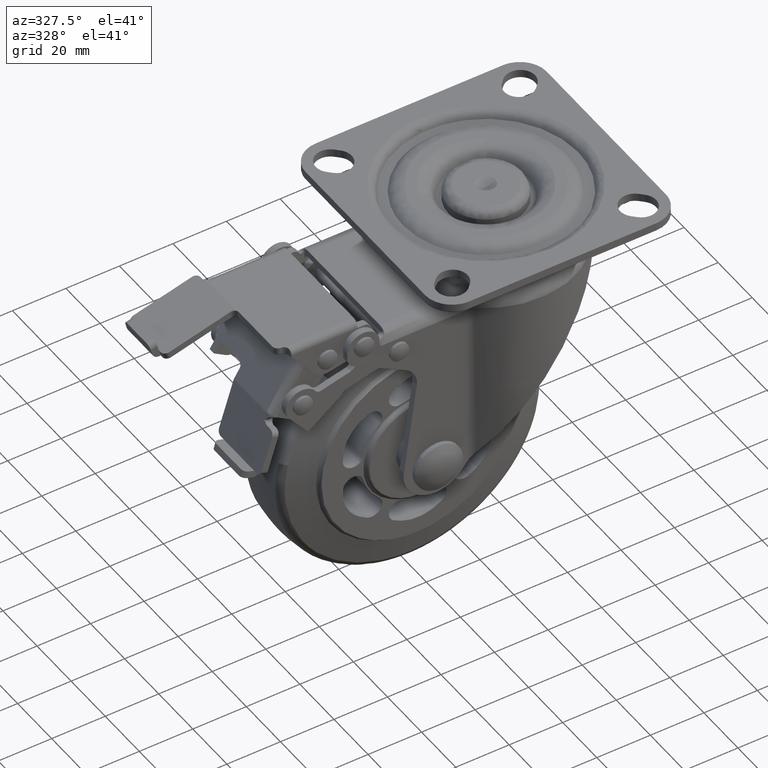
[diagram: clean part render]
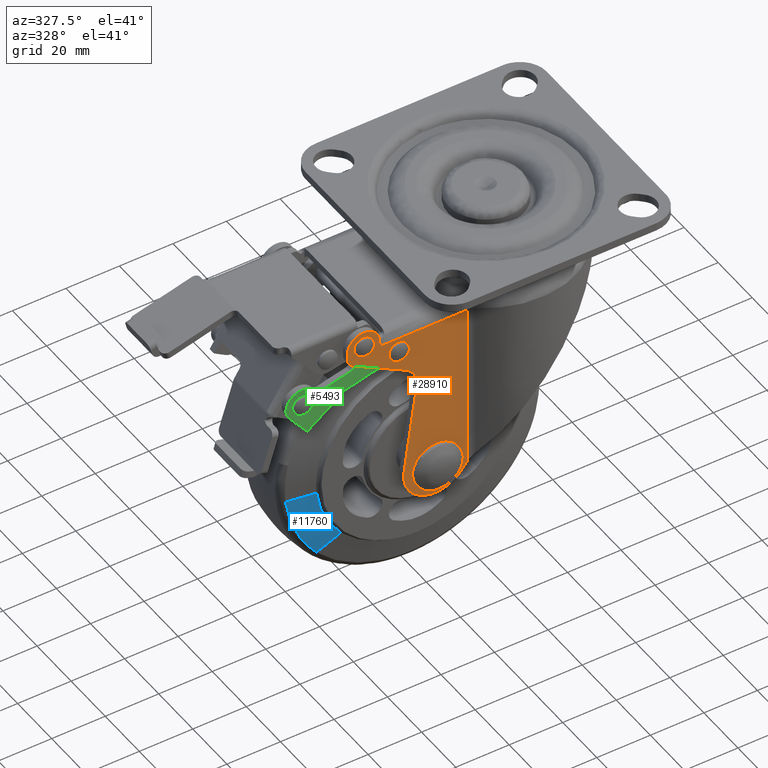
[diagram: same view with three faces highlighted in distinct colors, each labeled with its STEP entity id]
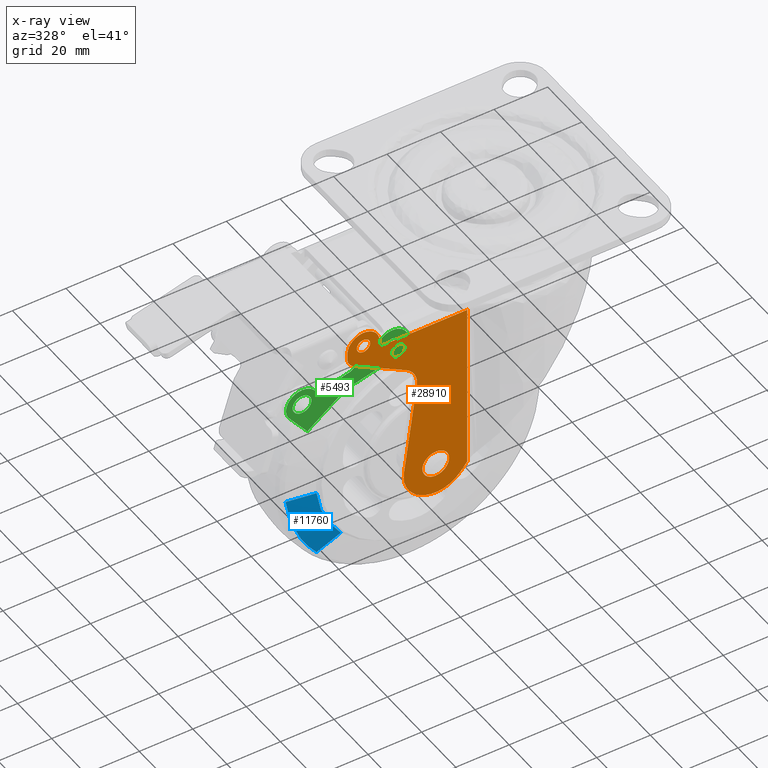
[diagram: x-ray of the same camera — body ghosted, the three highlighted faces saturated]
A machine part, auxiliary view with three faces highlighted in distinct colors.
The next image is the same camera in x-ray (body ghosted, the three faces saturated) — at least one of them is partly hidden behind the body in this view.
Their STEP definitions:

[orange] entity #28910 — the highlighted face is a freeform B-spline surface patch.
#21618=CARTESIAN_POINT('',(-3.566251753555961,-25.500000000000000,3.504545959670637));
#21619=VERTEX_POINT('',#21618);
#21625=CARTESIAN_POINT('',(-4.999999999999414,-25.500000000000000,-0.000002419094364));
#21626=VERTEX_POINT('',#21625);
#21627=CARTESIAN_POINT('',(-3.566251753555961,-25.500000000000000,3.504545959670637));
#21628=CARTESIAN_POINT('',(-3.991988132670250,-25.500000000000011,3.072064571483447));
#21629=CARTESIAN_POINT('',(-4.498081833211098,-25.500000000000011,2.322246550823603));
#21630=CARTESIAN_POINT('',(-4.916048472326435,-25.500000000000011,1.092136724434963));
#21631=CARTESIAN_POINT('',(-5.000097046721995,-25.499999999999989,0.404525921778818));
#21632=CARTESIAN_POINT('',(-4.999999999999414,-25.500000000000000,-0.000002419094364));
#21633=B_SPLINE_CURVE_WITH_KNOTS('',3,(#21627,#21628,#21629,#21630,#21631,#21632),.UNSPECIFIED.,.F.,.U.,(4,1,1,4),(0.000000047918333,1.820345191078629,2.669819100601112,3.883383684889002),.UNSPECIFIED.);
#21634=EDGE_CURVE('',#21619,#21626,#21633,.T.);
#21636=CARTESIAN_POINT('',(0.0,-25.500000000000000,-5.0));
#21637=VERTEX_POINT('',#21636);
#21638=CARTESIAN_POINT('',(-4.999999999999414,-25.500000000000000,-0.000002419094364));
#21639=CARTESIAN_POINT('',(-5.000157573746282,-25.500000000000011,-0.470431339491457));
#21640=CARTESIAN_POINT('',(-4.866278639997378,-25.500000000000028,-1.411220314885082));
#21641=CARTESIAN_POINT('',(-4.357098976019345,-25.500000000000000,-2.541206644646180));
#21642=CARTESIAN_POINT('',(-3.623630551286645,-25.499999999999961,-3.505138546369112));
#21643=CARTESIAN_POINT('',(-2.786654680242112,-25.499999999999879,-4.209421629424933));
#21644=CARTESIAN_POINT('',(-1.533669466304156,-25.500000000000082,-4.830464606631264));
#21645=CARTESIAN_POINT('',(-0.593228641195120,-25.499999999999790,-5.000511721325936));
#21646=CARTESIAN_POINT('',(0.0,-25.500000000000000,-5.0));
#21647=B_SPLINE_CURVE_WITH_KNOTS('',3,(#21638,#21639,#21640,#21641,#21642,#21643,#21644,#21645,#21646),.UNSPECIFIED.,.F.,.U.,(4,1,1,1,1,1,4),(0.000000212725990,1.411261675515068,2.822570997581190,3.681599647907114,5.031459413666931,6.074601990079772,7.854029550946113),.UNSPECIFIED.);
#21648=EDGE_CURVE('',#21626,#21637,#21647,.T.);
#21650=CARTESIAN_POINT('',(4.999999999999415,-25.500000000000000,0.000002419094348));
#21651=VERTEX_POINT('',#21650);
#21652=CARTESIAN_POINT('',(0.0,-25.500000000000000,-5.0));
#21653=CARTESIAN_POINT('',(0.368147878586699,-25.500000000000011,-5.000059477020746));
#21654=CARTESIAN_POINT('',(1.124908020499823,-25.499999999999979,-4.916078329069499));
#21655=CARTESIAN_POINT('',(2.018712517722065,-25.500000000000060,-4.602440892424577));
#21656=CARTESIAN_POINT('',(2.859312569878072,-25.499999999999869,-4.133048550618746));
#21657=CARTESIAN_POINT('',(3.515198570299598,-25.500000000000160,-3.601465760309441));
#21658=CARTESIAN_POINT('',(4.183986759379686,-25.500000000000021,-2.796634823733326));
#21659=CARTESIAN_POINT('',(4.802728206962187,-25.500000000000000,-1.656318927190959));
#21660=CARTESIAN_POINT('',(5.000651760896218,-25.500000000000039,-0.634149556366890));
#21661=CARTESIAN_POINT('',(4.999999999999415,-25.500000000000000,0.000002419094348));
#21662=B_SPLINE_CURVE_WITH_KNOTS('',3,(#21652,#21653,#21654,#21655,#21656,#21657,#21658,#21659,#21660,#21661),.UNSPECIFIED.,.F.,.U.,(4,1,1,1,1,1,1,4),(0.000000211885030,1.104447558449851,2.270307549778374,2.822571976929380,3.988310895941552,4.786017932891787,5.951884053035013,7.854032277846362),.UNSPECIFIED.);
#21663=EDGE_CURVE('',#21637,#21651,#21662,.T.);
#21665=CARTESIAN_POINT('',(3.504546805683333,-25.500000000000000,3.566252617747261));
#21666=VERTEX_POINT('',#21665);
#21667=CARTESIAN_POINT('',(4.999999999999415,-25.500000000000000,0.000002419094348));
#21668=CARTESIAN_POINT('',(5.000307658898555,-25.499999999999972,0.537721314100168));
#21669=CARTESIAN_POINT('',(4.841670081812332,-25.499999999999972,1.509533516539295));
#21670=CARTESIAN_POINT('',(4.257544146110182,-25.500000000000071,2.709721998991208));
#21671=CARTESIAN_POINT('',(3.755323000593012,-25.499999999999940,3.319864033228976));
#21672=CARTESIAN_POINT('',(3.504546805683333,-25.500000000000000,3.566252617747261));
#21673=B_SPLINE_CURVE_WITH_KNOTS('',3,(#21667,#21668,#21669,#21670,#21671,#21672),.UNSPECIFIED.,.F.,.U.,(4,1,1,4),(0.000000053522392,1.613088472586899,2.915943694694223,3.970647255260560),.UNSPECIFIED.);
#21674=EDGE_CURVE('',#21651,#21666,#21673,.T.);
#21760=CARTESIAN_POINT('',(0.0,-25.500000000000000,5.0));
#21761=VERTEX_POINT('',#21760);
#21762=CARTESIAN_POINT('',(3.504546805683333,-25.500000000000000,3.566252617747261));
#21763=CARTESIAN_POINT('',(3.259336300919578,-25.500000000000000,3.807292206920355));
#21764=CARTESIAN_POINT('',(2.734805078306951,-25.500000000000039,4.225713917241245));
#21765=CARTESIAN_POINT('',(1.577275230169902,-25.500000000000000,4.818828211919051));
#21766=CARTESIAN_POINT('',(0.627101140365250,-25.499999999999961,5.000525821532926));
#21767=CARTESIAN_POINT('',(0.0,-25.500000000000000,5.0));
#21768=B_SPLINE_CURVE_WITH_KNOTS('',3,(#21762,#21763,#21764,#21765,#21766,#21767),.UNSPECIFIED.,.F.,.U.,(4,1,1,4),(0.000000047903363,1.031525170700833,2.002339406052029,3.883381733091217),.UNSPECIFIED.);
#21769=EDGE_CURVE('',#21666,#21761,#21768,.T.);
#21771=CARTESIAN_POINT('',(0.0,-25.500000000000000,5.0));
#21772=CARTESIAN_POINT('',(-0.310202747582723,-25.499999999999989,5.000019603402691));
#21773=CARTESIAN_POINT('',(-0.992634910889171,-25.500000000000011,4.936317089850907));
#21774=CARTESIAN_POINT('',(-2.265930119526627,-25.499999999999989,4.545715244398017));
#21775=CARTESIAN_POINT('',(-3.117286525449961,-25.499999999999989,3.962352133745384));
#21776=CARTESIAN_POINT('',(-3.566251753555961,-25.500000000000000,3.504545959670637));
#21777=B_SPLINE_CURVE_WITH_KNOTS('',3,(#21771,#21772,#21773,#21774,#21775,#21776),.UNSPECIFIED.,.F.,.U.,(4,1,1,4),(0.000000053506600,0.930620547714524,2.047334579588369,3.970649191905151),.UNSPECIFIED.);
#21778=EDGE_CURVE('',#21761,#21619,#21777,.T.);
#22689=CARTESIAN_POINT('',(-28.783125339356051,-25.500000000000000,63.452284747588287));
#22690=VERTEX_POINT('',#22689);
#22696=CARTESIAN_POINT('',(-29.499999999997289,-25.500000000000000,61.700008605720349));
#22697=VERTEX_POINT('',#22696);
#22698=CARTESIAN_POINT('',(-28.783125339356051,-25.500000000000000,63.452284747588287));
#22699=CARTESIAN_POINT('',(-29.053098741330171,-25.500000000000011,63.178585795448782));
#22700=CARTESIAN_POINT('',(-29.396989698715512,-25.499999999999911,62.610149437670422));
#22701=CARTESIAN_POINT('',(-29.500119600055811,-25.500000000000050,61.962950499818817));
#22702=CARTESIAN_POINT('',(-29.499999999997289,-25.500000000000000,61.700008605720349));
#22703=B_SPLINE_CURVE_WITH_KNOTS('',3,(#22698,#22699,#22700,#22701,#22702),.UNSPECIFIED.,.F.,.U.,(4,1,4),(0.000000079756805,1.152887505579512,1.941729759913836),.UNSPECIFIED.);
#22704=EDGE_CURVE('',#22690,#22697,#22703,.T.);
#22706=CARTESIAN_POINT('',(-26.999999999999599,-25.500000000000000,59.200011999999987));
#22707=VERTEX_POINT('',#22706);
#22708=CARTESIAN_POINT('',(-29.499999999997289,-25.500000000000000,61.700008605720349));
#22709=CARTESIAN_POINT('',(-29.500276822347821,-25.500000000000000,61.393174452724672));
#22710=CARTESIAN_POINT('',(-29.400819769691179,-25.500000000000050,60.861580326682393));
#22711=CARTESIAN_POINT('',(-29.052458843491578,-25.499999999999929,60.228737864881573));
#22712=CARTESIAN_POINT('',(-28.604272044722979,-25.500000000000021,59.746267277461122));
#22713=CARTESIAN_POINT('',(-27.940569620165299,-25.500000000000082,59.325830682658342));
#22714=CARTESIAN_POINT('',(-27.347770577209481,-25.499999999999940,59.199561510218871));
#22715=CARTESIAN_POINT('',(-26.999999999999599,-25.500000000000000,59.200011999999987));
#22716=B_SPLINE_CURVE_WITH_KNOTS('',3,(#22708,#22709,#22710,#22711,#22712,#22713,#22714,#22715),.UNSPECIFIED.,.F.,.U.,(4,1,1,1,1,4),(0.000000309606965,0.920412019443474,1.595418182146082,2.147582907781859,2.883952340975204,3.927087447743025),.UNSPECIFIED.);
#22717=EDGE_CURVE('',#22697,#22707,#22716,.T.);
#22719=CARTESIAN_POINT('',(-24.500000000001901,-25.500000000000000,61.700015394279653));
#22720=VERTEX_POINT('',#22719);
#22721=CARTESIAN_POINT('',(-26.999999999999599,-25.500000000000000,59.200011999999987));
#22722=CARTESIAN_POINT('',(-26.693171147160669,-25.500000000000082,59.199743714555211));
#22723=CARTESIAN_POINT('',(-26.100180772822149,-25.499999999999918,59.310596173646012));
#22724=CARTESIAN_POINT('',(-25.423700282661311,-25.500000000000011,59.716016511524032));
#22725=CARTESIAN_POINT('',(-24.905430525455749,-25.500000000000039,60.273939012912699));
#22726=CARTESIAN_POINT('',(-24.578810311627599,-25.499999999999989,60.922769679425741));
#22727=CARTESIAN_POINT('',(-24.499938197860711,-25.500000000000000,61.454584642977473));
#22728=CARTESIAN_POINT('',(-24.500000000001901,-25.500000000000000,61.700015394279653));
#22729=B_SPLINE_CURVE_WITH_KNOTS('',3,(#22721,#22722,#22723,#22724,#22725,#22726,#22727,#22728),.UNSPECIFIED.,.F.,.U.,(4,1,1,1,1,4),(0.000000304965669,0.920412912718637,1.779508350278364,2.331669449207475,3.190764104411265,3.927091273982738),.UNSPECIFIED.);
#22730=EDGE_CURVE('',#22707,#22720,#22729,.T.);
#22732=CARTESIAN_POINT('',(-25.247726070787088,-25.500000000000000,63.483138557259707));
#22733=VERTEX_POINT('',#22732);
#22734=CARTESIAN_POINT('',(-24.500000000001901,-25.500000000000000,61.700015394279653));
#22735=CARTESIAN_POINT('',(-24.499745911550040,-25.500000000000011,62.010263987321927));
#22736=CARTESIAN_POINT('',(-24.624823118211442,-25.499999999999961,62.671795170410689));
#22737=CARTESIAN_POINT('',(-24.996587937723341,-25.500000000000028,63.237019542654771));
#22738=CARTESIAN_POINT('',(-25.247726070787088,-25.500000000000000,63.483138557259707));
#22739=B_SPLINE_CURVE_WITH_KNOTS('',3,(#22734,#22735,#22736,#22737,#22738),.UNSPECIFIED.,.F.,.U.,(4,1,4),(0.000000089076966,0.930660027124239,1.985359654721983),.UNSPECIFIED.);
#22740=EDGE_CURVE('',#22720,#22733,#22739,.T.);
#22822=CARTESIAN_POINT('',(-26.999999999999599,-25.500000000000000,64.200012000000001));
#22823=VERTEX_POINT('',#22822);
#22824=CARTESIAN_POINT('',(-25.247726070787088,-25.500000000000000,63.483138557259707));
#22825=CARTESIAN_POINT('',(-25.435186683282609,-25.499999999999972,63.667524003592042));
#22826=CARTESIAN_POINT('',(-25.969085462583749,-25.500000000000039,64.047584794496373));
#22827=CARTESIAN_POINT('',(-26.615555766769710,-25.499999999999989,64.200737861217178));
#22828=CARTESIAN_POINT('',(-26.999999999999599,-25.500000000000000,64.200012000000001));
#22829=B_SPLINE_CURVE_WITH_KNOTS('',3,(#22824,#22825,#22826,#22827,#22828),.UNSPECIFIED.,.F.,.U.,(4,1,4),(0.000000079680338,0.788841218248369,1.941727013514273),.UNSPECIFIED.);
#22830=EDGE_CURVE('',#22733,#22823,#22829,.T.);
#22832=CARTESIAN_POINT('',(-26.999999999999599,-25.500000000000000,64.200012000000001));
#22833=CARTESIAN_POINT('',(-27.206809747072981,-25.499999999999979,64.200060963018245));
#22834=CARTESIAN_POINT('',(-27.599705148125508,-25.500000000000028,64.150976929463468));
#22835=CARTESIAN_POINT('',(-28.222982092323630,-25.500000000000011,63.916521501591930));
#22836=CARTESIAN_POINT('',(-28.594787795292621,-25.499999999999989,63.644174268965962));
#22837=CARTESIAN_POINT('',(-28.783125339356051,-25.500000000000000,63.452284747588287));
#22838=B_SPLINE_CURVE_WITH_KNOTS('',3,(#22832,#22833,#22834,#22835,#22836,#22837),.UNSPECIFIED.,.F.,.U.,(4,1,1,4),(0.000000088994248,0.620434388624499,1.178793347693942,1.985362364631715),.UNSPECIFIED.);
#22839=EDGE_CURVE('',#22823,#22690,#22838,.T.);
#23073=CARTESIAN_POINT('',(-15.783125339356060,-25.500000000000000,55.452284747588287));
#23074=VERTEX_POINT('',#23073);
#23080=CARTESIAN_POINT('',(-16.499999999997300,-25.500000000000000,53.700008605720363));
#23081=VERTEX_POINT('',#23080);
#23082=CARTESIAN_POINT('',(-15.783125339356060,-25.500000000000000,55.452284747588287));
#23083=CARTESIAN_POINT('',(-16.024481501921709,-25.500000000000028,55.207307346296830));
#23084=CARTESIAN_POINT('',(-16.380670681908018,-25.499999999999989,54.650451539456689));
#23085=CARTESIAN_POINT('',(-16.500233352723310,-25.500000000000021,54.003435253687897));
#23086=CARTESIAN_POINT('',(-16.499999999997300,-25.500000000000000,53.700008605720363));
#23087=B_SPLINE_CURVE_WITH_KNOTS('',3,(#23082,#23083,#23084,#23085,#23086),.UNSPECIFIED.,.F.,.U.,(4,1,4),(0.000000079758824,1.031522776259140,1.941729759913830),.UNSPECIFIED.);
#23088=EDGE_CURVE('',#23074,#23081,#23087,.T.);
#23090=CARTESIAN_POINT('',(-13.999999999999600,-25.500000000000000,51.200011999999987));
#23091=VERTEX_POINT('',#23090);
#23092=CARTESIAN_POINT('',(-16.499999999997300,-25.500000000000000,53.700008605720363));
#23093=CARTESIAN_POINT('',(-16.500289564082941,-25.500000000000000,53.393157384014813));
#23094=CARTESIAN_POINT('',(-16.412253249257169,-25.500000000000039,52.922965287050999));
#23095=CARTESIAN_POINT('',(-16.107272564165591,-25.499999999999961,52.317187865133143));
#23096=CARTESIAN_POINT('',(-15.689039376082560,-25.499999999999989,51.807313370334363));
#23097=CARTESIAN_POINT('',(-14.981533268936669,-25.500000000000121,51.334420065619959));
#23098=CARTESIAN_POINT('',(-14.347740470858730,-25.499999999999869,51.199605828224172));
#23099=CARTESIAN_POINT('',(-13.999999999999600,-25.500000000000000,51.200011999999987));
#23100=B_SPLINE_CURVE_WITH_KNOTS('',3,(#23092,#23093,#23094,#23095,#23096,#23097,#23098,#23099),.UNSPECIFIED.,.F.,.U.,(4,1,1,1,1,4),(0.000000309608747,0.920412019444965,1.411308643455564,2.024861289260824,2.883952340975784,3.927087447742943),.UNSPECIFIED.);
#23101=EDGE_CURVE('',#23081,#23091,#23100,.T.);
#23103=CARTESIAN_POINT('',(-11.500000000001901,-25.500000000000000,53.700015394279639));
#23104=VERTEX_POINT('',#23103);
#23105=CARTESIAN_POINT('',(-13.999999999999600,-25.500000000000000,51.200011999999987));
#23106=CARTESIAN_POINT('',(-13.693154202308980,-25.500000000000050,51.199721758673192));
#23107=CARTESIAN_POINT('',(-13.222947830256500,-25.499999999999929,51.287758328518230));
#23108=CARTESIAN_POINT('',(-12.653906133363140,-25.500000000000028,51.574305153881333));
#23109=CARTESIAN_POINT('',(-12.151412270172820,-25.500000000000039,51.966088272273822));
#23110=CARTESIAN_POINT('',(-11.651875751036050,-25.499999999999861,52.657266279073852));
#23111=CARTESIAN_POINT('',(-11.499440169647331,-25.500000000000089,53.331786415590322));
#23112=CARTESIAN_POINT('',(-11.500000000001901,-25.500000000000000,53.700015394279639));
#23113=B_SPLINE_CURVE_WITH_KNOTS('',3,(#23105,#23106,#23107,#23108,#23109,#23110,#23111,#23112),.UNSPECIFIED.,.F.,.U.,(4,1,1,1,1,4),(0.000000304966659,0.920412912719008,1.411310012929337,1.902225803789732,2.822588348106729,3.927091273982746),.UNSPECIFIED.);
#23114=EDGE_CURVE('',#23091,#23104,#23113,.T.);
#23116=CARTESIAN_POINT('',(-12.247726070787090,-25.500000000000000,55.483138557259707));
#23117=VERTEX_POINT('',#23116);
#23118=CARTESIAN_POINT('',(-11.500000000001901,-25.500000000000000,53.700015394279639));
#23119=CARTESIAN_POINT('',(-11.499768996803200,-25.500000000000000,54.010261011751908));
#23120=CARTESIAN_POINT('',(-11.624786798475339,-25.499999999999979,54.671800413180982));
#23121=CARTESIAN_POINT('',(-11.996604518500421,-25.500000000000039,55.237016820603827));
#23122=CARTESIAN_POINT('',(-12.247726070787090,-25.500000000000000,55.483138557259707));
#23123=B_SPLINE_CURVE_WITH_KNOTS('',3,(#23118,#23119,#23120,#23121,#23122),.UNSPECIFIED.,.F.,.U.,(4,1,4),(0.000000089076184,0.930660027123788,1.985359654721992),.UNSPECIFIED.);
#23124=EDGE_CURVE('',#23104,#23117,#23123,.T.);
#23203=CARTESIAN_POINT('',(-13.999999999999600,-25.500000000000000,56.200012000000001));
#23204=VERTEX_POINT('',#23203);
#23205=CARTESIAN_POINT('',(-12.247726070787090,-25.500000000000000,55.483138557259707));
#23206=CARTESIAN_POINT('',(-12.435191188927590,-25.500000000000021,55.667545131222887));
#23207=CARTESIAN_POINT('',(-12.768891463247940,-25.500000000000000,55.904952835455958));
#23208=CARTESIAN_POINT('',(-13.373061863715280,-25.499999999999989,56.143578113175508));
#23209=CARTESIAN_POINT('',(-13.757275309205379,-25.500000000000089,56.200122415880450));
#23210=CARTESIAN_POINT('',(-13.999999999999600,-25.500000000000000,56.200012000000001));
#23211=B_SPLINE_CURVE_WITH_KNOTS('',3,(#23205,#23206,#23207,#23208,#23209,#23210),.UNSPECIFIED.,.F.,.U.,(4,1,1,4),(0.000000079680755,0.788841218248620,1.213578964815231,1.941727013514257),.UNSPECIFIED.);
#23212=EDGE_CURVE('',#23117,#23204,#23211,.T.);
#23214=CARTESIAN_POINT('',(-13.999999999999600,-25.500000000000000,56.200012000000001));
#23215=CARTESIAN_POINT('',(-14.310243603148150,-25.499999999999918,56.200278554728818));
#23216=CARTESIAN_POINT('',(-14.971819383812781,-25.500000000000220,56.075225976199690));
#23217=CARTESIAN_POINT('',(-15.536969068838880,-25.499999999999851,55.703377224209071));
#23218=CARTESIAN_POINT('',(-15.783125339356060,-25.500000000000000,55.452284747588287));
#23219=B_SPLINE_CURVE_WITH_KNOTS('',3,(#23214,#23215,#23216,#23217,#23218),.UNSPECIFIED.,.F.,.U.,(4,1,4),(0.000000088994169,0.930661297514774,1.985362364631715),.UNSPECIFIED.);
#23220=EDGE_CURVE('',#23204,#23074,#23219,.T.);
#25472=CARTESIAN_POINT('',(11.775535386729960,-25.500000000000000,58.699997000000003));
#25473=VERTEX_POINT('',#25472);
#25558=CARTESIAN_POINT('',(11.775535386730001,-25.500000000000000,-4.615695695761920));
#25559=VERTEX_POINT('',#25558);
#25579=CARTESIAN_POINT('',(11.775535386730001,-25.500000000000000,-4.615695695761920));
#25580=CARTESIAN_POINT('',(11.775535386729960,-25.500000000000000,58.699997000000003));
#25581=QUASI_UNIFORM_CURVE('',1,(#25579,#25580),.UNSPECIFIED.,.F.,.U.);
#25582=EDGE_CURVE('',#25559,#25473,#25581,.T.);
#27129=CARTESIAN_POINT('',(-20.999999999999599,-25.500000000000000,61.936346323290500));
#27130=VERTEX_POINT('',#27129);
#27131=CARTESIAN_POINT('',(-21.037882749999600,-25.500000000000000,62.127258992467901));
#27132=VERTEX_POINT('',#27131);
#27133=CARTESIAN_POINT('',(-20.999999999999599,-25.500000000000000,61.936346323290500));
#27134=CARTESIAN_POINT('',(-20.999947535841020,-25.499999999999989,62.001652997773753));
#27135=CARTESIAN_POINT('',(-21.012924608434730,-25.500000000000021,62.066918811518491));
#27136=CARTESIAN_POINT('',(-21.037882749999600,-25.500000000000000,62.127258992467901));
#27137=B_SPLINE_CURVE_WITH_KNOTS('',3,(#27133,#27134,#27135,#27136),.UNSPECIFIED.,.F.,.U.,(4,4),(0.000000036683496,0.195904783826250),.UNSPECIFIED.);
#27138=EDGE_CURVE('',#27130,#27132,#27137,.T.);
#27171=CARTESIAN_POINT('',(-20.499999999999599,-25.500000000000000,58.699997000000003));
#27172=VERTEX_POINT('',#27171);
#27182=CARTESIAN_POINT('',(-20.999999999999599,-25.500000000000000,60.879446471770002));
#27183=VERTEX_POINT('',#27182);
#27191=CARTESIAN_POINT('',(-20.499999999999599,-25.500000000000000,58.699997000000003));
#27192=CARTESIAN_POINT('',(-20.514746329075610,-25.500000000000000,58.744236426516018));
#27193=CARTESIAN_POINT('',(-20.529593731334970,-25.499999999999840,58.788778098176749));
#27194=CARTESIAN_POINT('',(-20.559115974899409,-25.499999999999840,58.877636882831908));
#27195=CARTESIAN_POINT('',(-20.573832896800081,-25.499999999999829,58.922079715508573));
#27196=CARTESIAN_POINT('',(-20.617717193271709,-25.499999999999840,59.055489241798213));
#27197=CARTESIAN_POINT('',(-20.646619373932499,-25.499999999999829,59.144536575870049));
#27198=CARTESIAN_POINT('',(-20.731160851795060,-25.499999999999829,59.412336933188669));
#27199=CARTESIAN_POINT('',(-20.784688554139070,-25.499999999999829,59.591732052545971));
#27200=CARTESIAN_POINT('',(-20.879370002163100,-25.499999999999840,59.954284977751563));
#27201=CARTESIAN_POINT('',(-20.920492767034620,-25.499999999999840,60.137158749943637));
#27202=CARTESIAN_POINT('',(-20.965553584333541,-25.499999999999840,60.413367329149388));
#27203=CARTESIAN_POINT('',(-20.977802010751908,-25.499999999999840,60.505827628783422));
#27204=CARTESIAN_POINT('',(-20.995011495030599,-25.499999999999840,60.691775597014292));
#27205=CARTESIAN_POINT('',(-20.999999999999591,-25.500000000000000,60.785259396133767));
#27206=CARTESIAN_POINT('',(-20.999999999999599,-25.500000000000000,60.879446471770002));
#27207=B_SPLINE_CURVE_WITH_KNOTS('',3,(#27191,#27192,#27193,#27194,#27195,#27196,#27197,#27198,#27199,#27200,#27201,#27202,#27203,#27204,#27205,#27206),.UNSPECIFIED.,.F.,.U.,(4,2,2,2,2,2,2,4),(0.0,0.062499999999997,0.124999999999994,0.249999999999997,0.499999999999995,0.749999999999992,0.874999999999996,1.0),.UNSPECIFIED.);
#27208=EDGE_CURVE('',#27172,#27183,#27207,.T.);
#27292=CARTESIAN_POINT('',(-21.121224843842700,-25.500000000000000,62.399996991050592));
#27293=VERTEX_POINT('',#27292);
#27299=CARTESIAN_POINT('',(-21.121224843842700,-25.500000000000000,62.399996991050592));
#27300=CARTESIAN_POINT('',(-21.102192029821602,-25.500000000000000,62.306711077573709));
#27301=CARTESIAN_POINT('',(-21.074239158057448,-25.500000000000021,62.215249815333507));
#27302=CARTESIAN_POINT('',(-21.037882749999600,-25.500000000000000,62.127258992467901));
#27303=B_SPLINE_CURVE_WITH_KNOTS('',3,(#27299,#27300,#27301,#27302),.UNSPECIFIED.,.F.,.U.,(4,4),(2.987671E-009,0.285625548629538),.UNSPECIFIED.);
#27304=EDGE_CURVE('',#27293,#27132,#27303,.T.);
#27433=CARTESIAN_POINT('',(-30.941859388502252,-25.500000000000000,55.202972215731400));
#27434=VERTEX_POINT('',#27433);
#27440=CARTESIAN_POINT('',(-32.999999999999503,-25.500000000000000,58.699996967614602));
#27441=VERTEX_POINT('',#27440);
#27442=CARTESIAN_POINT('',(-32.999999999999503,-25.500000000000000,58.699996967614602));
#27443=CARTESIAN_POINT('',(-33.000637310116403,-25.499999999999961,58.167921728627221));
#27444=CARTESIAN_POINT('',(-32.847387933558750,-25.500000000000110,57.414835881114868));
#27445=CARTESIAN_POINT('',(-32.383201651790372,-25.499999999999890,56.528085548811163));
#27446=CARTESIAN_POINT('',(-31.839783773300681,-25.500000000000330,55.822862355480403));
#27447=CARTESIAN_POINT('',(-31.310181517829619,-25.499999999999641,55.407223161334173));
#27448=CARTESIAN_POINT('',(-30.941859388502252,-25.500000000000000,55.202972215731400));
#27449=B_SPLINE_CURVE_WITH_KNOTS('',3,(#27442,#27443,#27444,#27445,#27446,#27447,#27448),.UNSPECIFIED.,.F.,.U.,(4,1,1,1,4),(0.000000126997920,1.595872806640408,2.260785828630530,2.992253840589021,4.255655121412997),.UNSPECIFIED.);
#27450=EDGE_CURVE('',#27441,#27434,#27449,.T.);
#27536=CARTESIAN_POINT('',(-32.999999999998401,-25.500000000000000,61.200000769911298));
#27537=VERTEX_POINT('',#27536);
#27543=CARTESIAN_POINT('',(-21.121224843842700,-25.500000000000000,62.399996991050592));
#27544=CARTESIAN_POINT('',(-21.244995696292278,-25.499999999999979,63.007731509538047));
#27545=CARTESIAN_POINT('',(-21.675282873527120,-25.500000000000050,64.162276973794988));
#27546=CARTESIAN_POINT('',(-22.673060801257069,-25.499999999999972,65.446042485944034));
#27547=CARTESIAN_POINT('',(-23.728302373393930,-25.500000000000050,66.269873979504496));
#27548=CARTESIAN_POINT('',(-24.648889239212060,-25.499999999999961,66.748355818108237));
#27549=CARTESIAN_POINT('',(-25.720829505779719,-25.500000000000210,67.101932920683254));
#27550=CARTESIAN_POINT('',(-26.845922597851121,-25.499999999999940,67.241332090172705));
#27551=CARTESIAN_POINT('',(-28.109592651091511,-25.500000000000021,67.135589574732464));
#27552=CARTESIAN_POINT('',(-29.242582553641260,-25.499999999999901,66.811435989883350));
#27553=CARTESIAN_POINT('',(-30.283695837116738,-25.500000000000160,66.262144814395810));
#27554=CARTESIAN_POINT('',(-31.260244166022900,-25.500000000000011,65.489809184281313));
#27555=CARTESIAN_POINT('',(-32.188024175557750,-25.500000000000089,64.364065576385528));
#27556=CARTESIAN_POINT('',(-32.850514925883537,-25.499999999999741,62.853826193261682));
#27557=CARTESIAN_POINT('',(-33.000129712558227,-25.500000000000039,61.728304986453431));
#27558=CARTESIAN_POINT('',(-32.999999999998401,-25.500000000000000,61.200000769911298));
#27559=B_SPLINE_CURVE_WITH_KNOTS('',3,(#27543,#27544,#27545,#27546,#27547,#27548,#27549,#27550,#27551,#27552,#27553,#27554,#27555,#27556,#27557,#27558),.UNSPECIFIED.,.F.,.U.,(4,1,1,1,1,1,1,1,1,1,1,1,1,4),(0.000000564548984,1.860554269253049,3.652339390605111,4.823853072793815,5.857548554294713,6.753415488985983,8.200628861699935,9.234121798533016,10.543528994106220,11.715041698976719,12.748742825458329,14.264840374168219,16.056591947910409,17.641501433679132),.UNSPECIFIED.);
#27560=EDGE_CURVE('',#27293,#27537,#27559,.T.);
#27661=CARTESIAN_POINT('',(-20.999999999999599,-25.500000000000000,61.936346323290500));
#27662=CARTESIAN_POINT('',(-20.999999999999599,-25.500000000000000,60.879446471770002));
#27663=QUASI_UNIFORM_CURVE('',1,(#27661,#27662),.UNSPECIFIED.,.F.,.U.);
#27664=EDGE_CURVE('',#27130,#27183,#27663,.T.);
#27808=CARTESIAN_POINT('',(9.216502000000419,-25.499999999993850,-7.684787999999880));
#27809=VERTEX_POINT('',#27808);
#27810=CARTESIAN_POINT('',(9.216502000000419,-25.499999999993850,-7.684787999999880));
#27811=CARTESIAN_POINT('',(11.775535386730001,-25.500000000000000,-4.615695695761920));
#27812=QUASI_UNIFORM_CURVE('',1,(#27810,#27811),.UNSPECIFIED.,.F.,.U.);
#27813=EDGE_CURVE('',#27809,#25559,#27812,.T.);
#28140=CARTESIAN_POINT('',(-11.116280419196039,-25.499999999993850,44.194046057426213));
#28141=VERTEX_POINT('',#28140);
#28160=CARTESIAN_POINT('',(-7.076856999999589,-25.499999999993850,36.093739000000099));
#28161=VERTEX_POINT('',#28160);
#28167=CARTESIAN_POINT('',(-11.116280419196039,-25.499999999993850,44.194046057426213));
#28168=CARTESIAN_POINT('',(-10.546690054821980,-25.499999999993818,43.877920856038891));
#28169=CARTESIAN_POINT('',(-9.526303715192364,-25.499999999993889,43.135167139648857));
#28170=CARTESIAN_POINT('',(-8.248854862138721,-25.499999999993872,41.639745104289659));
#28171=CARTESIAN_POINT('',(-7.436898164511819,-25.499999999993861,40.011387151182078));
#28172=CARTESIAN_POINT('',(-6.975925266544098,-25.499999999993850,38.103323924147972));
#28173=CARTESIAN_POINT('',(-6.972623034626831,-25.499999999993850,36.838151203434158));
#28174=CARTESIAN_POINT('',(-7.076856999999589,-25.499999999993850,36.093739000000099));
#28175=B_SPLINE_CURVE_WITH_KNOTS('',3,(#28167,#28168,#28169,#28170,#28171,#28172,#28173,#28174),.UNSPECIFIED.,.F.,.U.,(4,1,1,1,1,4),(0.000000034243762,1.954298752207533,3.758273810754577,5.862893444984297,7.366206262534879,9.621167221495291),.UNSPECIFIED.);
#28176=EDGE_CURVE('',#28141,#28161,#28175,.T.);
#28222=CARTESIAN_POINT('',(-11.884713830290540,-25.499999999993850,1.659390602628380));
#28223=VERTEX_POINT('',#28222);
#28229=CARTESIAN_POINT('',(-7.076856999999589,-25.499999999993850,36.093739000000099));
#28230=CARTESIAN_POINT('',(-11.884713830290540,-25.499999999993850,1.659390602628380));
#28231=QUASI_UNIFORM_CURVE('',1,(#28229,#28230),.UNSPECIFIED.,.F.,.U.);
#28232=EDGE_CURVE('',#28161,#28223,#28231,.T.);
#28320=CARTESIAN_POINT('',(9.216502000000419,-25.499999999993850,-7.684787999999880));
#28321=CARTESIAN_POINT('',(8.466669208961541,-25.499999999993861,-8.584901788872696));
#28322=CARTESIAN_POINT('',(6.974406010256577,-25.499999999993818,-9.917403986412101));
#28323=CARTESIAN_POINT('',(4.635809562943939,-25.499999999993900,-11.140499111545211));
#28324=CARTESIAN_POINT('',(2.699997551672312,-25.499999999993801,-11.739566903428701));
#28325=CARTESIAN_POINT('',(1.017885568910711,-25.499999999993928,-11.991450879009680));
#28326=CARTESIAN_POINT('',(-0.843444919126391,-25.499999999993559,-12.023889346777381));
#28327=CARTESIAN_POINT('',(-2.852411748280619,-25.499999999994230,-11.732159570497659));
#28328=CARTESIAN_POINT('',(-5.188324675991072,-25.499999999993349,-10.916245527967311));
#28329=CARTESIAN_POINT('',(-7.242460111880319,-25.499999999993971,-9.676246098149610));
#28330=CARTESIAN_POINT('',(-9.052656064390487,-25.499999999993960,-7.989325550715618));
#28331=CARTESIAN_POINT('',(-10.509502667717390,-25.499999999993719,-5.986336841761236));
#28332=CARTESIAN_POINT('',(-11.534669334119870,-25.499999999994039,-3.638244265795066));
#28333=CARTESIAN_POINT('',(-12.052582453454001,-25.499999999993499,-1.009017352698404));
#28334=CARTESIAN_POINT('',(-12.013367110222880,-25.499999999994039,0.739244427333916));
#28335=CARTESIAN_POINT('',(-11.884713830290540,-25.499999999993850,1.659390602628380));
#28336=B_SPLINE_CURVE_WITH_KNOTS('',3,(#28320,#28321,#28322,#28323,#28324,#28325,#28326,#28327,#28328,#28329,#28330,#28331,#28332,#28333,#28334,#28335),.UNSPECIFIED.,.F.,.U.,(4,1,1,1,1,1,1,1,1,1,1,1,1,4),(0.000000341854733,3.514390025874278,5.938129901101021,7.877128696450896,9.573763053312710,11.028024909455000,13.451715976690330,15.632980516459121,18.420280942019090,20.601672791250699,23.025437447916001,25.812768552301360,28.236496785193559,31.023749050010331),.UNSPECIFIED.);
#28337=EDGE_CURVE('',#27809,#28223,#28336,.T.);
#28390=CARTESIAN_POINT('',(-30.941859388502252,-25.500000000000000,55.202972215731400));
#28391=CARTESIAN_POINT('',(-11.116280419196039,-25.499999999993850,44.194046057426213));
#28392=QUASI_UNIFORM_CURVE('',1,(#28390,#28391),.UNSPECIFIED.,.F.,.U.);
#28393=EDGE_CURVE('',#27434,#28141,#28392,.T.);
#28692=CARTESIAN_POINT('',(-32.999999999999503,-25.500000000000000,58.699996967614602));
#28693=CARTESIAN_POINT('',(-32.999999999998401,-25.500000000000000,61.200000769911298));
#28694=QUASI_UNIFORM_CURVE('',1,(#28692,#28693),.UNSPECIFIED.,.F.,.U.);
#28695=EDGE_CURVE('',#27441,#27537,#28694,.T.);
#28861=CARTESIAN_POINT('',(14.012073712834150,-25.500000000000000,-15.954828740501920));
#28862=CARTESIAN_POINT('',(-35.236539126752618,-25.500000000000000,-15.954828740501920));
#28863=CARTESIAN_POINT('',(14.012073712834150,-25.500000000000000,71.155988039748920));
#28864=CARTESIAN_POINT('',(-35.236539126752618,-25.500000000000000,71.155988039748920));
#28865=B_SPLINE_SURFACE_WITH_KNOTS('',1,1,((#28861,#28863),(#28862,#28864)),.UNSPECIFIED.,.F.,.F.,.U.,(2,2),(2,2),(0.0,49.248612839586769),(0.0,87.110816780250843),.UNSPECIFIED.);
#28866=ORIENTED_EDGE('',*,*,#27813,.T.);
#28867=ORIENTED_EDGE('',*,*,#25582,.T.);
#28868=CARTESIAN_POINT('',(11.775535386729960,-25.500000000000000,58.699997000000003));
#28869=CARTESIAN_POINT('',(-20.499999999999599,-25.500000000000000,58.699997000000003));
#28870=QUASI_UNIFORM_CURVE('',1,(#28868,#28869),.UNSPECIFIED.,.F.,.U.);
#28871=EDGE_CURVE('',#25473,#27172,#28870,.T.);
#28872=ORIENTED_EDGE('',*,*,#28871,.T.);
#28873=ORIENTED_EDGE('',*,*,#27208,.T.);
#28874=ORIENTED_EDGE('',*,*,#27664,.F.);
#28875=ORIENTED_EDGE('',*,*,#27138,.T.);
#28876=ORIENTED_EDGE('',*,*,#27304,.F.);
#28877=ORIENTED_EDGE('',*,*,#27560,.T.);
#28878=ORIENTED_EDGE('',*,*,#28695,.F.);
#28879=ORIENTED_EDGE('',*,*,#27450,.T.);
#28880=ORIENTED_EDGE('',*,*,#28393,.T.);
#28881=ORIENTED_EDGE('',*,*,#28176,.T.);
#28882=ORIENTED_EDGE('',*,*,#28232,.T.);
#28883=ORIENTED_EDGE('',*,*,#28337,.F.);
#28884=EDGE_LOOP('',(#28866,#28867,#28872,#28873,#28874,#28875,#28876,#28877,#28878,#28879,#28880,#28881,#28882,#28883));
#28885=FACE_OUTER_BOUND('',#28884,.T.);
#28886=ORIENTED_EDGE('',*,*,#23101,.F.);
#28887=ORIENTED_EDGE('',*,*,#23088,.F.);
#28888=ORIENTED_EDGE('',*,*,#23220,.F.);
#28889=ORIENTED_EDGE('',*,*,#23212,.F.);
#28890=ORIENTED_EDGE('',*,*,#23124,.F.);
#28891=ORIENTED_EDGE('',*,*,#23114,.F.);
#28892=EDGE_LOOP('',(#28886,#28887,#28888,#28889,#28890,#28891));
#28893=FACE_BOUND('',#28892,.T.);
#28894=ORIENTED_EDGE('',*,*,#22717,.F.);
#28895=ORIENTED_EDGE('',*,*,#22704,.F.);
#28896=ORIENTED_EDGE('',*,*,#22839,.F.);
#28897=ORIENTED_EDGE('',*,*,#22830,.F.);
#28898=ORIENTED_EDGE('',*,*,#22740,.F.);
#28899=ORIENTED_EDGE('',*,*,#22730,.F.);
#28900=EDGE_LOOP('',(#28894,#28895,#28896,#28897,#28898,#28899));
#28901=FACE_BOUND('',#28900,.T.);
#28902=ORIENTED_EDGE('',*,*,#21648,.F.);
#28903=ORIENTED_EDGE('',*,*,#21634,.F.);
#28904=ORIENTED_EDGE('',*,*,#21778,.F.);
#28905=ORIENTED_EDGE('',*,*,#21769,.F.);
#28906=ORIENTED_EDGE('',*,*,#21674,.F.);
#28907=ORIENTED_EDGE('',*,*,#21663,.F.);
#28908=EDGE_LOOP('',(#28902,#28903,#28904,#28905,#28906,#28907));
#28909=FACE_BOUND('',#28908,.T.);
#28910=ADVANCED_FACE('',(#28885,#28893,#28901,#28909),#28865,.F.);

[blue] entity #11760 — the highlighted face is a freeform B-spline surface patch.
#11538=CARTESIAN_POINT('',(-36.913161374811978,-13.550369590192620,-3.861132457667963));
#11539=VERTEX_POINT('',#11538);
#11612=CARTESIAN_POINT('',(-27.797155151657670,-13.550369503904889,-24.592845445453481));
#11613=VERTEX_POINT('',#11612);
#11626=CARTESIAN_POINT('',(-35.264613903331380,-10.899260769740360,-31.199494865088411));
#11627=VERTEX_POINT('',#11626);
#11628=CARTESIAN_POINT('',(-27.797155151657670,-13.550369503904889,-24.592845445453481));
#11629=CARTESIAN_POINT('',(-35.264613903331380,-10.899260769740360,-31.199494865088411));
#11630=QUASI_UNIFORM_CURVE('',1,(#11628,#11629),.UNSPECIFIED.,.F.,.U.);
#11631=EDGE_CURVE('',#11613,#11627,#11630,.T.);
#11704=CARTESIAN_POINT('',(-46.829555143729081,-10.899260768308570,-4.898391484480755));
#11705=VERTEX_POINT('',#11704);
#11714=CARTESIAN_POINT('',(-36.913161374811978,-13.550369590192620,-3.861132457667963));
#11715=CARTESIAN_POINT('',(-46.829555143729081,-10.899260768308570,-4.898391484480755));
#11716=QUASI_UNIFORM_CURVE('',1,(#11714,#11715),.UNSPECIFIED.,.F.,.U.);
#11717=EDGE_CURVE('',#11539,#11705,#11716,.T.);
#11722=CARTESIAN_POINT('',(-27.610468009032871,-13.616647339635399,-24.427678613804989));
#11723=CARTESIAN_POINT('',(-35.436540287774683,-13.616647339635399,-15.581913049881765));
#11724=CARTESIAN_POINT('',(-36.665251392505716,-13.616647339635406,-3.835200967554579));
#11725=CARTESIAN_POINT('',(-35.455967557900593,-10.831326102932730,-31.368790277750499));
#11726=CARTESIAN_POINT('',(-45.505814041128474,-10.831326102932733,-20.009505213960605));
#11727=CARTESIAN_POINT('',(-47.083662741596818,-10.831326102932731,-4.924971247830982));
#11735=(BOUNDED_SURFACE()B_SPLINE_SURFACE(2,1,((#11722,#11725),(#11723,#11726),(#11724,#11727)),.UNSPECIFIED.,.F.,.F.,.U.)B_SPLINE_SURFACE_WITH_KNOTS((3,3),(2,2),(0.0,31.160696120054219),(0.0,10.839230078482091),.UNSPECIFIED.)GEOMETRIC_REPRESENTATION_ITEM()RATIONAL_B_SPLINE_SURFACE(((1.0,1.0),(0.882842712474619,0.882842712474619),(0.859411254969543,0.859411254969543)))REPRESENTATION_ITEM('')SURFACE());
#11736=CARTESIAN_POINT('',(-36.913161374811978,-13.550369590192620,-3.861132457667963));
#11737=CARTESIAN_POINT('',(-36.738634381780699,-13.550369583120331,-5.530162759174980));
#11738=CARTESIAN_POINT('',(-36.121554502061663,-13.550369568128369,-9.081232636715937));
#11739=CARTESIAN_POINT('',(-34.564507067739051,-13.550369548280621,-13.821448662790701));
#11740=CARTESIAN_POINT('',(-31.950336556092878,-13.550369525843960,-19.225002847270360));
#11741=CARTESIAN_POINT('',(-29.584630486337769,-13.550369512108929,-22.573184499128040));
#11742=CARTESIAN_POINT('',(-27.797155151657670,-13.550369503904889,-24.592845445453481));
#11743=B_SPLINE_CURVE_WITH_KNOTS('',3,(#11736,#11737,#11738,#11739,#11740,#11741,#11742),.UNSPECIFIED.,.F.,.U.,(4,1,1,1,4),(0.000000013757106,5.034395360408997,10.788011504001600,14.923383848053410,23.014392014075650),.UNSPECIFIED.);
#11744=EDGE_CURVE('',#11539,#11613,#11743,.T.);
#11745=ORIENTED_EDGE('',*,*,#11744,.F.);
#11746=ORIENTED_EDGE('',*,*,#11717,.T.);
#11747=CARTESIAN_POINT('',(-46.829555143729081,-10.899260768308570,-4.898391484480755));
#11748=CARTESIAN_POINT('',(-46.552911338648357,-10.899260768482449,-7.545167130059517));
#11749=CARTESIAN_POINT('',(-45.663727079654542,-10.899260768774051,-12.191911265237801));
#11750=CARTESIAN_POINT('',(-43.534127785238390,-10.899260769120209,-18.227737044851992));
#11751=CARTESIAN_POINT('',(-40.404095561672122,-10.899260769454710,-24.579636849513829));
#11752=CARTESIAN_POINT('',(-37.481891251870763,-10.899260769641399,-28.694218339512371));
#11753=CARTESIAN_POINT('',(-35.264613903331380,-10.899260769740360,-31.199494865088411));
#11754=B_SPLINE_CURVE_WITH_KNOTS('',3,(#11747,#11748,#11749,#11750,#11751,#11752,#11753),.UNSPECIFIED.,.F.,.U.,(4,1,1,1,4),(0.000000012745019,7.983556866439610,14.142318184165219,19.160523701699510,29.197004237435930),.UNSPECIFIED.);
#11755=EDGE_CURVE('',#11705,#11627,#11754,.T.);
#11756=ORIENTED_EDGE('',*,*,#11755,.T.);
#11757=ORIENTED_EDGE('',*,*,#11631,.F.);
#11758=EDGE_LOOP('',(#11745,#11746,#11756,#11757));
#11759=FACE_OUTER_BOUND('',#11758,.T.);
#11760=ADVANCED_FACE('',(#11759),#11735,.T.);

[green] entity #5493 — the highlighted face is a freeform B-spline surface patch.
#281=CARTESIAN_POINT('',(-15.908889918050569,-22.0,52.085656566794597));
#282=VERTEX_POINT('',#281);
#288=CARTESIAN_POINT('',(-13.999999999999600,-22.0,51.200011999999987));
#289=VERTEX_POINT('',#288);
#290=CARTESIAN_POINT('',(-15.908889918050569,-22.0,52.085656566794597));
#291=CARTESIAN_POINT('',(-15.748252259989041,-22.000000000000011,51.895553490380010));
#292=CARTESIAN_POINT('',(-15.421203052697591,-21.999999999999989,51.609240220355872));
#293=CARTESIAN_POINT('',(-14.769112091008351,-22.000000000000011,51.284897648946377));
#294=CARTESIAN_POINT('',(-14.294171829198021,-22.0,51.199772541401551));
#295=CARTESIAN_POINT('',(-13.999999999999600,-22.0,51.200011999999987));
#296=B_SPLINE_CURVE_WITH_KNOTS('',3,(#290,#291,#292,#293,#294,#295),.UNSPECIFIED.,.F.,.U.,(4,1,1,4),(0.000000103083929,0.746652981283672,1.289644127578707,2.172071377104653),.UNSPECIFIED.);
#297=EDGE_CURVE('',#282,#289,#296,.T.);
#299=CARTESIAN_POINT('',(-11.500000000001901,-22.0,53.700015394279639));
#300=VERTEX_POINT('',#299);
#301=CARTESIAN_POINT('',(-13.999999999999600,-22.0,51.200011999999987));
#302=CARTESIAN_POINT('',(-13.775028742939391,-22.0,51.199976890172792));
#303=CARTESIAN_POINT('',(-13.243167524506440,-22.000000000000039,51.272106319227269));
#304=CARTESIAN_POINT('',(-12.570232180094790,-21.999999999999972,51.600471277700890));
#305=CARTESIAN_POINT('',(-12.077845040801719,-22.000000000000082,52.069654987881563));
#306=CARTESIAN_POINT('',(-11.780984723822430,-21.999999999999840,52.513925416334352));
#307=CARTESIAN_POINT('',(-11.560752502775120,-22.000000000000210,53.045571356303718));
#308=CARTESIAN_POINT('',(-11.499884617453240,-21.999999999999851,53.454565678203423));
#309=CARTESIAN_POINT('',(-11.500000000001901,-22.0,53.700015394279639));
#310=B_SPLINE_CURVE_WITH_KNOTS('',3,(#301,#302,#303,#304,#305,#306,#307,#308,#309),.UNSPECIFIED.,.F.,.U.,(4,1,1,1,1,1,4),(0.000000304966044,0.674966076699207,1.595419731366516,2.208979491049639,2.699873008652468,3.190764104410909,3.927091273982736),.UNSPECIFIED.);
#311=EDGE_CURVE('',#289,#300,#310,.T.);
#313=CARTESIAN_POINT('',(-13.999999999999600,-22.0,56.200012000000001));
#314=VERTEX_POINT('',#313);
#315=CARTESIAN_POINT('',(-11.500000000001901,-22.0,53.700015394279639));
#316=CARTESIAN_POINT('',(-11.499871314280780,-22.000000000000028,53.965916696326921));
#317=CARTESIAN_POINT('',(-11.569182727459671,-21.999999999999961,54.395343366569222));
#318=CARTESIAN_POINT('',(-11.844027927708320,-21.999999999999979,55.015381738289008));
#319=CARTESIAN_POINT('',(-12.238297957261130,-22.000000000000139,55.520712844001331));
#320=CARTESIAN_POINT('',(-12.756917734136801,-21.999999999999890,55.895452853760588));
#321=CARTESIAN_POINT('',(-13.345556508943281,-22.000000000000021,56.139273111989752));
#322=CARTESIAN_POINT('',(-13.754553428189659,-21.999999999999950,56.200109911677011));
#323=CARTESIAN_POINT('',(-13.999999999999600,-22.0,56.200012000000001));
#324=B_SPLINE_CURVE_WITH_KNOTS('',3,(#315,#316,#317,#318,#319,#320,#321,#322,#323),.UNSPECIFIED.,.F.,.U.,(4,1,1,1,1,1,4),(0.000000309606943,0.797678994689900,1.288596479617874,2.024861289259717,2.699870376240857,3.190760993943865,3.927087447743033),.UNSPECIFIED.);
#325=EDGE_CURVE('',#300,#314,#324,.T.);
#327=CARTESIAN_POINT('',(-15.720885672634200,-22.0,55.513447486772463));
#328=VERTEX_POINT('',#327);
#329=CARTESIAN_POINT('',(-13.999999999999600,-22.0,56.200012000000001));
#330=CARTESIAN_POINT('',(-14.237264736658270,-22.000000000000011,56.200104391189363));
#331=CARTESIAN_POINT('',(-14.691958903327970,-21.999999999999979,56.134793751625523));
#332=CARTESIAN_POINT('',(-15.275826160561509,-21.999999999999911,55.877416175846157));
#333=CARTESIAN_POINT('',(-15.591822772088371,-22.000000000000160,55.635944943385901));
#334=CARTESIAN_POINT('',(-15.720885672634200,-22.0,55.513447486772463));
#335=B_SPLINE_CURVE_WITH_KNOTS('',3,(#329,#330,#331,#332,#333,#334),.UNSPECIFIED.,.F.,.U.,(4,1,1,4),(0.000000071160812,0.711784005374859,1.364249636833172,1.898089494586104),.UNSPECIFIED.);
#336=EDGE_CURVE('',#314,#328,#335,.T.);
#417=CARTESIAN_POINT('',(-16.499999999997300,-22.0,53.700008605720349));
#418=VERTEX_POINT('',#417);
#419=CARTESIAN_POINT('',(-15.720885672634200,-22.0,55.513447486772463));
#420=CARTESIAN_POINT('',(-15.874233348363180,-22.000000000000011,55.367998207889322));
#421=CARTESIAN_POINT('',(-16.143682428326979,-22.0,55.037901578680788));
#422=CARTESIAN_POINT('',(-16.428655956001680,-22.000000000000060,54.418549811358773));
#423=CARTESIAN_POINT('',(-16.500103327906171,-21.999999999999950,53.953632569362753));
#424=CARTESIAN_POINT('',(-16.499999999997300,-22.0,53.700008605720349));
#425=B_SPLINE_CURVE_WITH_KNOTS('',3,(#419,#420,#421,#422,#423,#424),.UNSPECIFIED.,.F.,.U.,(4,1,1,4),(0.000000099245643,0.634072653316461,1.268126305049877,2.029002922615202),.UNSPECIFIED.);
#426=EDGE_CURVE('',#328,#418,#425,.T.);
#428=CARTESIAN_POINT('',(-16.499999999997300,-22.0,53.700008605720349));
#429=CARTESIAN_POINT('',(-16.500169188132819,-22.000000000000011,53.425764482264313));
#430=CARTESIAN_POINT('',(-16.402715419547359,-21.999999999999979,52.840901504355543));
#431=CARTESIAN_POINT('',(-16.109830384256860,-22.000000000000021,52.322785822213653));
#432=CARTESIAN_POINT('',(-15.908889918050569,-22.0,52.085656566794597));
#433=B_SPLINE_CURVE_WITH_KNOTS('',3,(#428,#429,#430,#431,#432),.UNSPECIFIED.,.F.,.U.,(4,1,4),(0.000000062744816,0.822686342678452,1.755018577475625),.UNSPECIFIED.);
#434=EDGE_CURVE('',#418,#282,#433,.T.);
#1055=CARTESIAN_POINT('',(-50.416169510119772,-22.000000000000011,42.146846806448977));
#1056=VERTEX_POINT('',#1055);
#1062=CARTESIAN_POINT('',(-47.743724999999600,-22.0,40.906944846215481));
#1063=VERTEX_POINT('',#1062);
#1064=CARTESIAN_POINT('',(-50.416169510119772,-22.000000000000011,42.146846806448977));
#1065=CARTESIAN_POINT('',(-50.130113023070422,-22.000000000000011,41.807898680369178));
#1066=CARTESIAN_POINT('',(-49.552338119634989,-21.999999999999979,41.342847387849147));
#1067=CARTESIAN_POINT('',(-48.598922405933770,-22.000000000000039,40.976986676252103));
#1068=CARTESIAN_POINT('',(-48.028802363045372,-21.999999999999950,40.906878930088361));
#1069=CARTESIAN_POINT('',(-47.743724999999600,-22.0,40.906944846215481));
#1070=B_SPLINE_CURVE_WITH_KNOTS('',3,(#1064,#1065,#1066,#1067,#1068,#1069),.UNSPECIFIED.,.F.,.U.,(4,1,1,4),(0.000000035335156,1.330401668898284,2.185645780825661,3.040898415611715),.UNSPECIFIED.);
#1071=EDGE_CURVE('',#1056,#1063,#1070,.T.);
#1073=CARTESIAN_POINT('',(-44.243725846216243,-22.0,44.406946843744826));
#1074=VERTEX_POINT('',#1073);
#1075=CARTESIAN_POINT('',(-47.743724999999600,-22.0,40.906944846215481));
#1076=CARTESIAN_POINT('',(-47.457382420379297,-21.999999999999972,40.906878942861383));
#1077=CARTESIAN_POINT('',(-46.913369089181579,-22.000000000000028,40.974094321251513));
#1078=CARTESIAN_POINT('',(-46.076167341565622,-21.999999999999961,41.285160416339430));
#1079=CARTESIAN_POINT('',(-45.342508849092440,-22.000000000000181,41.801825817311602));
#1080=CARTESIAN_POINT('',(-44.793544037326519,-21.999999999999758,42.470982502242713));
#1081=CARTESIAN_POINT('',(-44.366570926843693,-22.000000000000369,43.319081707302082));
#1082=CARTESIAN_POINT('',(-44.243319560219227,-21.999999999999819,43.977364109425842));
#1083=CARTESIAN_POINT('',(-44.243725846216243,-22.0,44.406946843744826));
#1084=B_SPLINE_CURVE_WITH_KNOTS('',3,(#1075,#1076,#1077,#1078,#1079,#1080,#1081,#1082,#1083),.UNSPECIFIED.,.F.,.U.,(4,1,1,1,1,1,4),(0.000000189369495,0.859029059204098,1.632210115956923,2.663079877410055,3.522100907928426,4.209350704926389,5.497925378734164),.UNSPECIFIED.);
#1085=EDGE_CURVE('',#1063,#1074,#1084,.T.);
#1087=CARTESIAN_POINT('',(-47.743724999999600,-22.0,47.906943153784511));
#1088=VERTEX_POINT('',#1087);
#1089=CARTESIAN_POINT('',(-44.243725846216243,-22.0,44.406946843744826));
#1090=CARTESIAN_POINT('',(-44.243395722562930,-21.999999999999989,44.836518301640538));
#1091=CARTESIAN_POINT('',(-44.366490237012933,-22.000000000000011,45.494825009388919));
#1092=CARTESIAN_POINT('',(-44.767706797127254,-21.999999999999972,46.291514536372553));
#1093=CARTESIAN_POINT('',(-45.192513978592373,-22.000000000000060,46.835896942213317));
#1094=CARTESIAN_POINT('',(-45.715412648480147,-22.0,47.286911359048652));
#1095=CARTESIAN_POINT('',(-46.541494025812113,-21.999999999999989,47.755124511907923));
#1096=CARTESIAN_POINT('',(-47.256815894180043,-22.000000000000011,47.907572940613257));
#1097=CARTESIAN_POINT('',(-47.743724999999600,-22.0,47.906943153784511));
#1098=B_SPLINE_CURVE_WITH_KNOTS('',3,(#1089,#1090,#1091,#1092,#1093,#1094,#1095,#1096,#1097),.UNSPECIFIED.,.F.,.U.,(4,1,1,1,1,1,4),(0.000000193257466,1.288575714171571,1.975818070541376,2.663078332228473,3.350272599238046,4.037535108995066,5.497922173091055),.UNSPECIFIED.);
#1099=EDGE_CURVE('',#1074,#1088,#1098,.T.);
#1101=CARTESIAN_POINT('',(-50.152965001593088,-22.0,46.945753114817776));
#1102=VERTEX_POINT('',#1101);
#1103=CARTESIAN_POINT('',(-47.743724999999600,-22.0,47.906943153784511));
#1104=CARTESIAN_POINT('',(-48.048208005439520,-21.999999999999989,47.907009677048862));
#1105=CARTESIAN_POINT('',(-48.684834250536312,-22.000000000000021,47.823410710550426));
#1106=CARTESIAN_POINT('',(-49.507779624678477,-21.999999999999989,47.472246261586641));
#1107=CARTESIAN_POINT('',(-49.972275309002448,-22.000000000000011,47.117244719237483));
#1108=CARTESIAN_POINT('',(-50.152965001593088,-22.0,46.945753114817776));
#1109=B_SPLINE_CURVE_WITH_KNOTS('',3,(#1103,#1104,#1105,#1106,#1107,#1108),.UNSPECIFIED.,.F.,.U.,(4,1,1,4),(0.000000051704021,0.913466155248138,1.909951310876003,2.657325264340843),.UNSPECIFIED.);
#1110=EDGE_CURVE('',#1088,#1102,#1109,.T.);
#1193=CARTESIAN_POINT('',(-51.243724153782971,-22.0,44.406941156255208));
#1194=VERTEX_POINT('',#1193);
#1195=CARTESIAN_POINT('',(-50.152965001593088,-22.0,46.945753114817776));
#1196=CARTESIAN_POINT('',(-50.410647978551232,-22.000000000000028,46.701442216301530));
#1197=CARTESIAN_POINT('',(-50.777168247039960,-21.999999999999979,46.228150982337418));
#1198=CARTESIAN_POINT('',(-51.152848225808377,-22.000000000000039,45.353689008723279));
#1199=CARTESIAN_POINT('',(-51.243908557090990,-21.999999999999989,44.762034181016404));
#1200=CARTESIAN_POINT('',(-51.243724153782971,-22.0,44.406941156255208));
#1201=B_SPLINE_CURVE_WITH_KNOTS('',3,(#1195,#1196,#1197,#1198,#1199,#1200),.UNSPECIFIED.,.F.,.U.,(4,1,1,4),(0.000000044942468,1.065232391625191,1.775363428529776,2.840601256236416),.UNSPECIFIED.);
#1202=EDGE_CURVE('',#1102,#1194,#1201,.T.);
#1204=CARTESIAN_POINT('',(-51.243724153782971,-22.0,44.406941156255208));
#1205=CARTESIAN_POINT('',(-51.243957744888569,-22.0,44.023006039125377));
#1206=CARTESIAN_POINT('',(-51.107565677235527,-22.000000000000028,43.204178230577142));
#1207=CARTESIAN_POINT('',(-50.697449518444543,-22.0,42.478853728465303));
#1208=CARTESIAN_POINT('',(-50.416169510119772,-22.000000000000011,42.146846806448977));
#1209=B_SPLINE_CURVE_WITH_KNOTS('',3,(#1204,#1205,#1206,#1207,#1208),.UNSPECIFIED.,.F.,.U.,(4,1,4),(0.000000050131332,1.151746974537347,2.457027730373632),.UNSPECIFIED.);
#1210=EDGE_CURVE('',#1194,#1056,#1209,.T.);
#4572=CARTESIAN_POINT('',(-32.656112988645702,-22.0,42.241748939827453));
#4573=VERTEX_POINT('',#4572);
#4595=CARTESIAN_POINT('',(-45.736899394520201,-22.0,32.240743928623552));
#4596=VERTEX_POINT('',#4595);
#4597=CARTESIAN_POINT('',(-45.736899394520201,-22.0,32.240743928623552));
#4598=CARTESIAN_POINT('',(-32.656112988645702,-22.0,42.241748939827453));
#4599=QUASI_UNIFORM_CURVE('',1,(#4597,#4598),.UNSPECIFIED.,.F.,.U.);
#4600=EDGE_CURVE('',#4596,#4573,#4599,.T.);
#5360=CARTESIAN_POINT('',(-56.026021017145162,-22.0,30.869170161806590));
#5361=CARTESIAN_POINT('',(-5.717479534424438,-22.0,30.869170161806590));
#5362=CARTESIAN_POINT('',(-56.026021017145162,-22.0,61.071286202897838));
#5363=CARTESIAN_POINT('',(-5.717479534424438,-22.0,61.071286202897838));
#5364=B_SPLINE_SURFACE_WITH_KNOTS('',1,1,((#5360,#5362),(#5361,#5363)),.UNSPECIFIED.,.F.,.F.,.U.,(2,2),(2,2),(0.0,50.308541482720713),(0.0,30.202116041091251),.UNSPECIFIED.);
#5365=CARTESIAN_POINT('',(-52.439870851982100,-22.0,40.671571358381762));
#5366=VERTEX_POINT('',#5365);
#5367=CARTESIAN_POINT('',(-45.736899394520201,-22.0,32.240743928623552));
#5368=CARTESIAN_POINT('',(-52.439870851982100,-22.0,40.671571358381762));
#5369=QUASI_UNIFORM_CURVE('',1,(#5367,#5368),.UNSPECIFIED.,.F.,.U.);
#5370=EDGE_CURVE('',#4596,#5366,#5369,.T.);
#5371=ORIENTED_EDGE('',*,*,#5370,.F.);
#5372=ORIENTED_EDGE('',*,*,#4600,.T.);
#5373=CARTESIAN_POINT('',(-31.955758661389812,-22.0,42.895150219097800));
#5374=VERTEX_POINT('',#5373);
#5375=CARTESIAN_POINT('',(-31.955758661389812,-22.0,42.895150219097800));
#5376=CARTESIAN_POINT('',(-32.076740468075158,-22.0,42.864209118087693));
#5377=CARTESIAN_POINT('',(-32.297133446244310,-22.0,42.760627028225500));
#5378=CARTESIAN_POINT('',(-32.533122554300810,-22.000000000000050,42.518844470841543));
#5379=CARTESIAN_POINT('',(-32.626621046988561,-21.999999999999979,42.330621999962347));
#5380=CARTESIAN_POINT('',(-32.656112988645702,-22.0,42.241748939827453));
#5381=B_SPLINE_CURVE_WITH_KNOTS('',3,(#5375,#5376,#5377,#5378,#5379,#5380),.UNSPECIFIED.,.F.,.U.,(4,1,1,4),(0.000000185204741,0.374596757053614,0.717935181841988,0.998871904152211),.UNSPECIFIED.);
#5382=EDGE_CURVE('',#5374,#4573,#5381,.T.);
#5383=ORIENTED_EDGE('',*,*,#5382,.F.);
#5384=CARTESIAN_POINT('',(-12.507862960726539,-22.0,47.888516303899003));
#5385=VERTEX_POINT('',#5384);
#5386=CARTESIAN_POINT('',(-12.507862960726539,-22.0,47.888516303899003));
#5387=CARTESIAN_POINT('',(-31.955758661389812,-22.0,42.895150219097800));
#5388=QUASI_UNIFORM_CURVE('',1,(#5386,#5387),.UNSPECIFIED.,.F.,.U.);
#5389=EDGE_CURVE('',#5385,#5374,#5388,.T.);
#5390=ORIENTED_EDGE('',*,*,#5389,.F.);
#5391=CARTESIAN_POINT('',(-8.580536928102639,-22.0,56.274769305478657));
#5392=VERTEX_POINT('',#5391);
#5393=CARTESIAN_POINT('',(-12.507862960726539,-22.0,47.888516303899003));
#5394=CARTESIAN_POINT('',(-11.867368409121610,-22.000000000000011,48.052571535960752));
#5395=CARTESIAN_POINT('',(-10.871766709613849,-21.999999999999972,48.493815436076943));
#5396=CARTESIAN_POINT('',(-9.778224572550720,-22.000000000000011,49.387780461592712));
#5397=CARTESIAN_POINT('',(-9.084029564466540,-22.000000000000011,50.212529702288862));
#5398=CARTESIAN_POINT('',(-8.534975920252281,-21.999999999999940,51.140225601685543));
#5399=CARTESIAN_POINT('',(-8.185122869797013,-22.000000000000188,52.103292160403917));
#5400=CARTESIAN_POINT('',(-7.986615364172181,-21.999999999999719,53.217852154334707));
#5401=CARTESIAN_POINT('',(-7.990284594801490,-22.000000000000099,54.603579818760082));
#5402=CARTESIAN_POINT('',(-8.296456388981405,-22.000000000000099,55.677747495693943));
#5403=CARTESIAN_POINT('',(-8.580536928102639,-22.0,56.274769305478657));
#5404=B_SPLINE_CURVE_WITH_KNOTS('',3,(#5393,#5394,#5395,#5396,#5397,#5398,#5399,#5400,#5401,#5402,#5403),.UNSPECIFIED.,.F.,.U.,(4,1,1,1,1,1,1,1,4),(0.000000266464095,1.983372642538845,3.223011296753960,4.214735342446591,5.206443650630485,6.445980585128514,7.272386097568223,8.594681115434241,10.578044716010989),.UNSPECIFIED.);
#5405=EDGE_CURVE('',#5385,#5392,#5404,.T.);
#5406=ORIENTED_EDGE('',*,*,#5405,.T.);
#5407=CARTESIAN_POINT('',(-17.562558020463801,-22.0,58.527861989446293));
#5408=VERTEX_POINT('',#5407);
#5409=CARTESIAN_POINT('',(-8.580536928102639,-22.0,56.274769305478657));
#5410=CARTESIAN_POINT('',(-8.757808383432984,-22.000000000000028,56.647993740648040));
#5411=CARTESIAN_POINT('',(-9.218624876218417,-21.999999999999961,57.405000456468137));
#5412=CARTESIAN_POINT('',(-10.065726173193630,-22.000000000000071,58.283467031108977));
#5413=CARTESIAN_POINT('',(-11.066891462913089,-21.999999999999929,58.974067622657991));
#5414=CARTESIAN_POINT('',(-12.281730590986760,-22.000000000000039,59.513800122181500));
#5415=CARTESIAN_POINT('',(-13.680853962712440,-22.000000000000028,59.754027967352158));
#5416=CARTESIAN_POINT('',(-14.923309884907921,-21.999999999999829,59.656779630950417));
#5417=CARTESIAN_POINT('',(-16.209192700078528,-22.000000000000949,59.337891194283827));
#5418=CARTESIAN_POINT('',(-17.030789289900600,-21.999999999998991,58.920790717238432));
#5419=CARTESIAN_POINT('',(-17.562558020463801,-22.0,58.527861989446293));
#5420=B_SPLINE_CURVE_WITH_KNOTS('',3,(#5409,#5410,#5411,#5412,#5413,#5414,#5415,#5416,#5417,#5418,#5419),.UNSPECIFIED.,.F.,.U.,(4,1,1,1,1,1,1,1,4),(0.000000266486021,1.239572624068517,2.644512821139092,3.636209269304050,4.875871275656639,6.611241468000327,7.850891051220688,8.594681141177256,10.578044747689800),.UNSPECIFIED.);
#5421=EDGE_CURVE('',#5392,#5408,#5420,.T.);
#5422=ORIENTED_EDGE('',*,*,#5421,.T.);
#5423=CARTESIAN_POINT('',(-29.497360475839550,-22.0,49.720954918389701));
#5424=VERTEX_POINT('',#5423);
#5425=CARTESIAN_POINT('',(-29.497360475839550,-22.0,49.720954918389701));
#5426=CARTESIAN_POINT('',(-17.562558020463801,-22.0,58.527861989446293));
#5427=QUASI_UNIFORM_CURVE('',1,(#5425,#5426),.UNSPECIFIED.,.F.,.U.);
#5428=EDGE_CURVE('',#5424,#5408,#5427,.T.);
#5429=ORIENTED_EDGE('',*,*,#5428,.F.);
#5430=CARTESIAN_POINT('',(-40.570841037108252,-22.0,46.877778469400901));
#5431=VERTEX_POINT('',#5430);
#5432=CARTESIAN_POINT('',(-40.570841037108252,-22.0,46.877778469400901));
#5433=CARTESIAN_POINT('',(-29.497360475839550,-22.0,49.720954918389701));
#5434=QUASI_UNIFORM_CURVE('',1,(#5432,#5433),.UNSPECIFIED.,.F.,.U.);
#5435=EDGE_CURVE('',#5431,#5424,#5434,.T.);
#5436=ORIENTED_EDGE('',*,*,#5435,.F.);
#5437=CARTESIAN_POINT('',(-42.737002564571398,-22.0,47.712599277023998));
#5438=VERTEX_POINT('',#5437);
#5439=CARTESIAN_POINT('',(-42.737002564571398,-22.0,47.712599277023998));
#5440=CARTESIAN_POINT('',(-42.566726944843303,-22.000000000000028,47.453949079087643));
#5441=CARTESIAN_POINT('',(-42.160858460941647,-21.999999999999950,47.073285094847819));
#5442=CARTESIAN_POINT('',(-41.373031918252650,-22.000000000000110,46.787169833576172));
#5443=CARTESIAN_POINT('',(-40.845668607810680,-21.999999999999879,46.806819926177759));
#5444=CARTESIAN_POINT('',(-40.570841037108252,-22.0,46.877778469400901));
#5445=B_SPLINE_CURVE_WITH_KNOTS('',3,(#5439,#5440,#5441,#5442,#5443,#5444),.UNSPECIFIED.,.F.,.U.,(4,1,1,4),(0.000000195140778,0.928801169789663,1.625348503530702,2.476747152477606),.UNSPECIFIED.);
#5446=EDGE_CURVE('',#5438,#5431,#5445,.T.);
#5447=ORIENTED_EDGE('',*,*,#5446,.F.);
#5448=CARTESIAN_POINT('',(-51.267267484934813,-22.0,49.261687541941022));
#5449=VERTEX_POINT('',#5448);
#5450=CARTESIAN_POINT('',(-42.737002564571398,-22.0,47.712599277023998));
#5451=CARTESIAN_POINT('',(-43.125954060350359,-22.000000000000039,48.302454339753602));
#5452=CARTESIAN_POINT('',(-43.921369561610128,-21.999999999999940,49.137232887176289));
#5453=CARTESIAN_POINT('',(-45.435175237002163,-22.000000000000028,50.017365336625659));
#5454=CARTESIAN_POINT('',(-46.788639977311377,-22.000000000000099,50.388919875417670));
#5455=CARTESIAN_POINT('',(-48.282576338383919,-21.999999999999730,50.431102775577607));
#5456=CARTESIAN_POINT('',(-49.756519070990272,-22.000000000000242,50.143738790065093));
#5457=CARTESIAN_POINT('',(-50.777322272880177,-21.999999999999869,49.617599537590714));
#5458=CARTESIAN_POINT('',(-51.267267484934813,-22.0,49.261687541941022));
#5459=B_SPLINE_CURVE_WITH_KNOTS('',3,(#5450,#5451,#5452,#5453,#5454,#5455,#5456,#5457,#5458),.UNSPECIFIED.,.F.,.U.,(4,1,1,1,1,1,4),(0.000000226527732,2.119394977812918,3.406188160109668,5.222795617143827,6.282498896777397,7.872061792850454,9.688685066339311),.UNSPECIFIED.);
#5460=EDGE_CURVE('',#5438,#5449,#5459,.T.);
#5461=ORIENTED_EDGE('',*,*,#5460,.T.);
#5462=CARTESIAN_POINT('',(-51.267267484934813,-22.0,49.261687541941022));
#5463=CARTESIAN_POINT('',(-51.696219582863648,-22.000000000000011,48.950636639136327));
#5464=CARTESIAN_POINT('',(-52.433808966120601,-21.999999999999979,48.248871836687862));
#5465=CARTESIAN_POINT('',(-53.268614749405231,-22.000000000000011,46.912595517326217));
#5466=CARTESIAN_POINT('',(-53.697251857546981,-21.999999999999950,45.525245657734260));
#5467=CARTESIAN_POINT('',(-53.769985826460072,-22.000000000000121,44.310151337429907));
#5468=CARTESIAN_POINT('',(-53.659770004315533,-21.999999999999790,43.254092647078700));
#5469=CARTESIAN_POINT('',(-53.324055009977890,-22.000000000000188,42.031347464625483));
#5470=CARTESIAN_POINT('',(-52.816961166587987,-21.999999999999631,41.145406523389170));
#5471=CARTESIAN_POINT('',(-52.439870851982100,-22.0,40.671571358381762));
#5472=B_SPLINE_CURVE_WITH_KNOTS('',3,(#5462,#5463,#5464,#5465,#5466,#5467,#5468,#5469,#5470,#5471),.UNSPECIFIED.,.F.,.U.,(4,1,1,1,1,1,1,4),(0.000000226517106,1.589535672375060,3.027717951022989,4.692996336638728,5.904017355302359,6.660965952339669,7.872061836183833,9.688685119672845),.UNSPECIFIED.);
#5473=EDGE_CURVE('',#5449,#5366,#5472,.T.);
#5474=ORIENTED_EDGE('',*,*,#5473,.T.);
#5475=EDGE_LOOP('',(#5371,#5372,#5383,#5390,#5406,#5422,#5429,#5436,#5447,#5461,#5474));
#5476=FACE_OUTER_BOUND('',#5475,.T.);
#5477=ORIENTED_EDGE('',*,*,#1085,.F.);
#5478=ORIENTED_EDGE('',*,*,#1071,.F.);
#5479=ORIENTED_EDGE('',*,*,#1210,.F.);
#5480=ORIENTED_EDGE('',*,*,#1202,.F.);
#5481=ORIENTED_EDGE('',*,*,#1110,.F.);
#5482=ORIENTED_EDGE('',*,*,#1099,.F.);
#5483=EDGE_LOOP('',(#5477,#5478,#5479,#5480,#5481,#5482));
#5484=FACE_BOUND('',#5483,.T.);
#5485=ORIENTED_EDGE('',*,*,#311,.F.);
#5486=ORIENTED_EDGE('',*,*,#297,.F.);
#5487=ORIENTED_EDGE('',*,*,#434,.F.);
#5488=ORIENTED_EDGE('',*,*,#426,.F.);
#5489=ORIENTED_EDGE('',*,*,#336,.F.);
#5490=ORIENTED_EDGE('',*,*,#325,.F.);
#5491=EDGE_LOOP('',(#5485,#5486,#5487,#5488,#5489,#5490));
#5492=FACE_BOUND('',#5491,.T.);
#5493=ADVANCED_FACE('',(#5476,#5484,#5492),#5364,.T.);